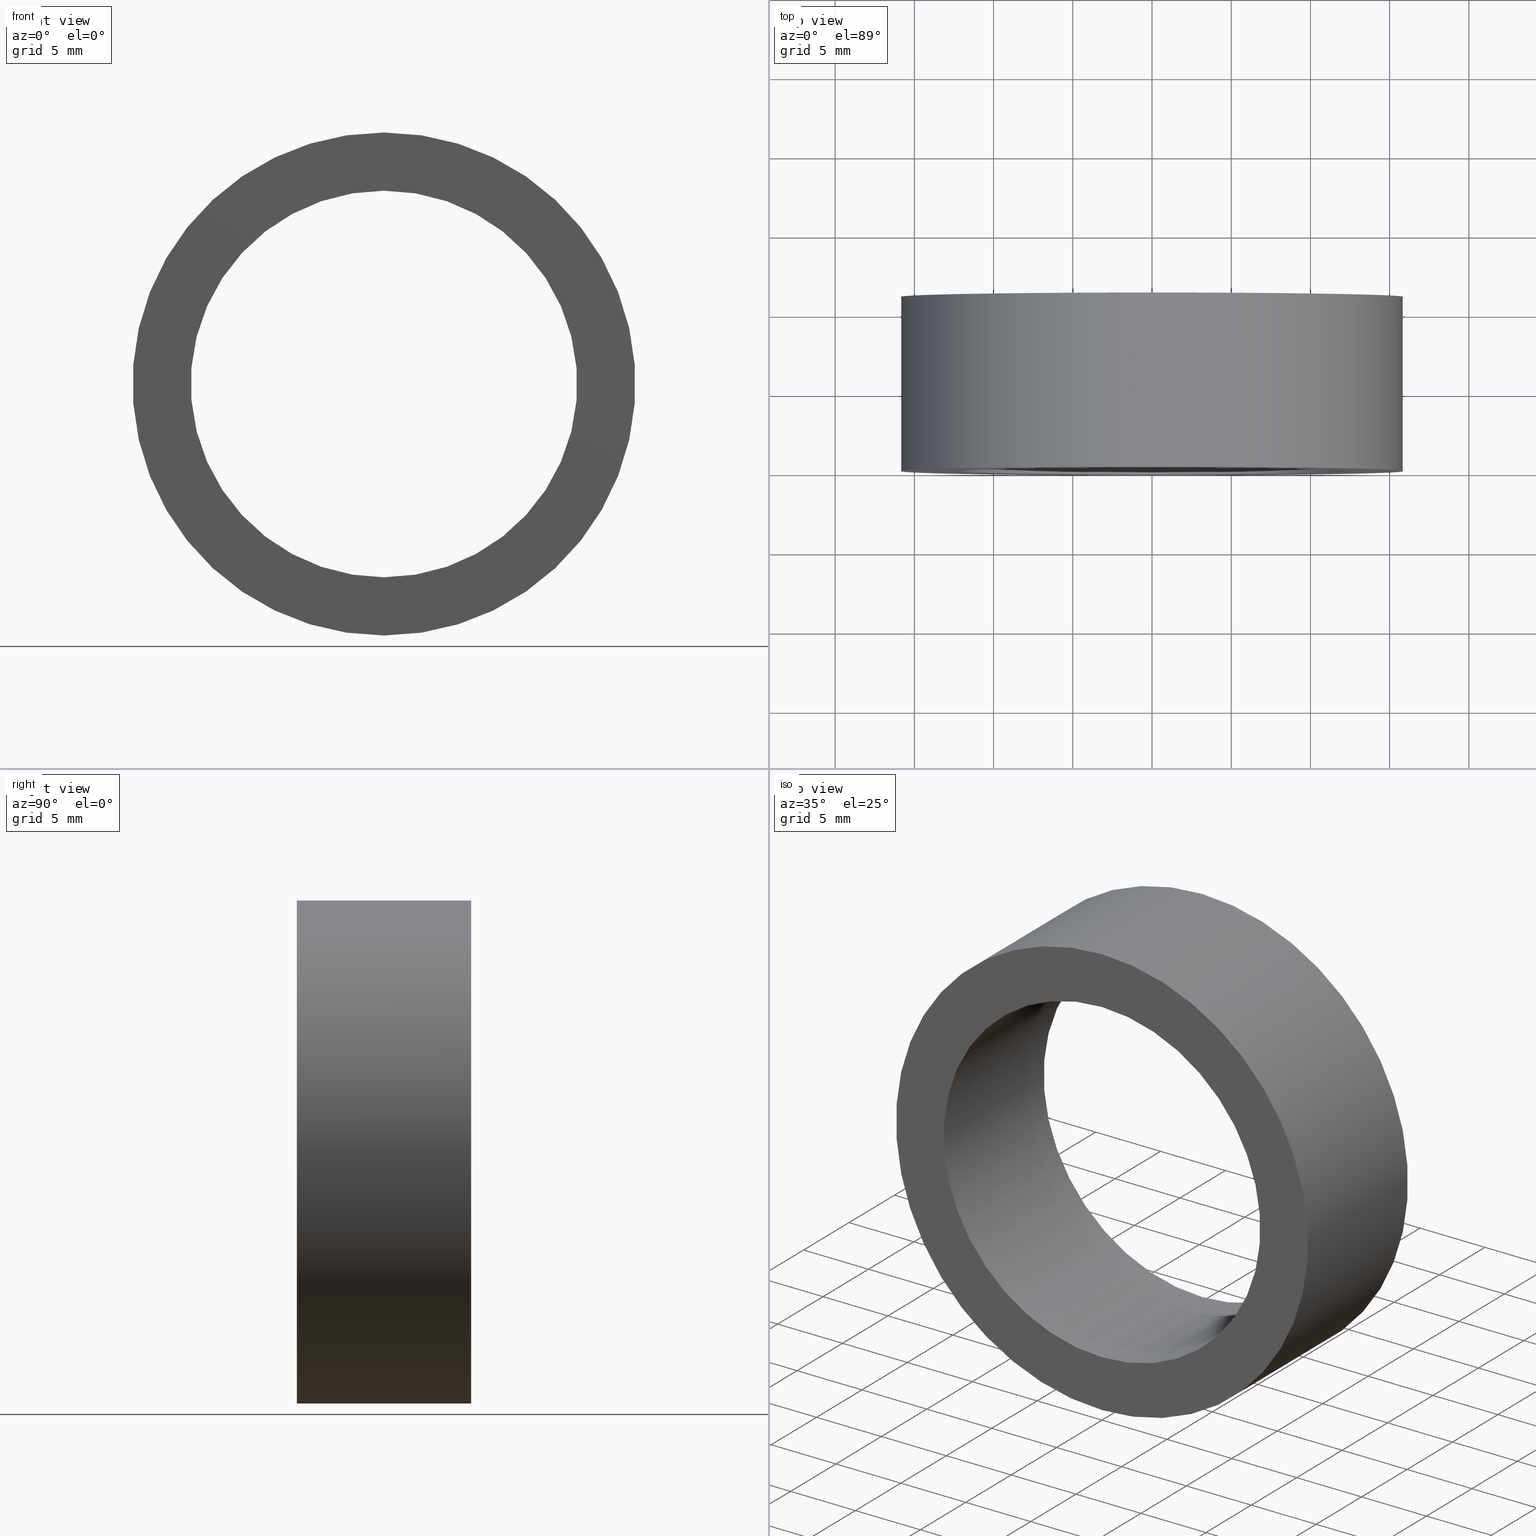
[diagram: canonical four-view strip — front | top / right | iso, engineering-drawing reading convention]
A machine part, canonical four-view strip (front | top / right | iso — engineering-drawing reading convention). The complete STEP part file that produces these views, byte-faithful:
ISO-10303-21;
HEADER;
FILE_DESCRIPTION (( 'STEP AP214' ),
    '1' );
FILE_NAME ('504079.STEP',
    '2019-09-05T09:06:12',
    ( 'user' ),
    ( '΢���й�' ),
    'SwSTEP 2.0',
    'SolidWorks 2016',
    '' );
FILE_SCHEMA (( 'AUTOMOTIVE_DESIGN' ));
ENDSEC;

DATA;
#1 = SURFACE_STYLE_USAGE ( .BOTH. , #99 ) ;
#2 = DIRECTION ( 'NONE',  ( 0.0000000000000000000, 1.000000000000000000, 0.0000000000000000000 ) ) ;
#3 = DIRECTION ( 'NONE',  ( 0.0000000000000000000, 1.000000000000000000, 0.0000000000000000000 ) ) ;
#4 = DIRECTION ( 'NONE',  ( 0.0000000000000000000, -0.0000000000000000000, 1.000000000000000000 ) ) ;
#5 = CARTESIAN_POINT ( 'NONE',  ( 0.0000000000000000000, 11.00000000000000000, 0.0000000000000000000 ) ) ;
#6 = DIRECTION ( 'NONE',  ( -0.0000000000000000000, -1.000000000000000000, -0.0000000000000000000 ) ) ;
#7 = SURFACE_STYLE_FILL_AREA ( #94 ) ;
#8 = ADVANCED_FACE ( 'NONE', ( #242, #216 ), #236, .F. ) ;
#9 = EDGE_LOOP ( 'NONE', ( #55, #64, #69, #92 ) ) ;
#10 = SURFACE_STYLE_FILL_AREA ( #163 ) ;
#11 = AXIS2_PLACEMENT_3D ( 'NONE', #144, #223, #125 ) ;
#12 = APPLICATION_PROTOCOL_DEFINITION ( 'draft international standard', 'automotive_design', 1998, #244 ) ;
#13 = CIRCLE ( 'NONE', #148, 15.87500000000000000 ) ;
#14 = PRESENTATION_STYLE_ASSIGNMENT (( #38 ) ) ;
#15 = CYLINDRICAL_SURFACE ( 'NONE', #185, 12.19999999999999900 ) ;
#16 = FILL_AREA_STYLE_COLOUR ( '', #209 ) ;
#17 = CARTESIAN_POINT ( 'NONE',  ( 0.0000000000000000000, 11.00000000000000000, 0.0000000000000000000 ) ) ;
#18 = CARTESIAN_POINT ( 'NONE',  ( 0.0000000000000000000, 0.0000000000000000000, 0.0000000000000000000 ) ) ;
#19 = CIRCLE ( 'NONE', #54, 15.87500000000000000 ) ;
#20 = DIRECTION ( 'NONE',  ( 0.0000000000000000000, 0.0000000000000000000, 1.000000000000000000 ) ) ;
#21 = UNCERTAINTY_MEASURE_WITH_UNIT (LENGTH_MEASURE( 1.000000000000000100E-005 ), #243, 'distance_accuracy_value', 'NONE');
#22 = CARTESIAN_POINT ( 'NONE',  ( 0.0000000000000000000, 11.00000000000000000, -15.87500000000000000 ) ) ;
#23 =( GEOMETRIC_REPRESENTATION_CONTEXT ( 3 ) GLOBAL_UNCERTAINTY_ASSIGNED_CONTEXT ( ( #21 ) ) GLOBAL_UNIT_ASSIGNED_CONTEXT ( ( #243, #165, #26 ) ) REPRESENTATION_CONTEXT ( 'NONE', 'WORKASPACE' ) );
#24 = LINE ( 'NONE', #86, #128 ) ;
#25 = MECHANICAL_DESIGN_GEOMETRIC_PRESENTATION_REPRESENTATION (  '', ( #50 ), #208 ) ;
#26 =( NAMED_UNIT ( * ) SI_UNIT ( $, .STERADIAN. ) SOLID_ANGLE_UNIT ( ) );
#27 = FILL_AREA_STYLE_COLOUR ( '', #122 ) ;
#28 = FACE_OUTER_BOUND ( 'NONE', #88, .T. ) ;
#29 =( LENGTH_UNIT ( ) NAMED_UNIT ( * ) SI_UNIT ( .MILLI., .METRE. ) );
#30 = EDGE_CURVE ( 'NONE', #74, #90, #68, .T. ) ;
#31 = ORIENTED_EDGE ( 'NONE', *, *, #135, .T. ) ;
#32 = CARTESIAN_POINT ( 'NONE',  ( 0.0000000000000000000, 11.00000000000000000, 0.0000000000000000000 ) ) ;
#33 = DIRECTION ( 'NONE',  ( 0.0000000000000000000, 0.0000000000000000000, -1.000000000000000000 ) ) ;
#34 =( NAMED_UNIT ( * ) SI_UNIT ( $, .STERADIAN. ) SOLID_ANGLE_UNIT ( ) );
#35 = DIRECTION ( 'NONE',  ( -0.0000000000000000000, -1.000000000000000000, -0.0000000000000000000 ) ) ;
#36 = CIRCLE ( 'NONE', #219, 12.19999999999999900 ) ;
#37 = EDGE_CURVE ( 'NONE', #226, #235, #19, .T. ) ;
#38 = SURFACE_STYLE_USAGE ( .BOTH. , #72 ) ;
#39 = DIRECTION ( 'NONE',  ( 0.0000000000000000000, -0.0000000000000000000, 1.000000000000000000 ) ) ;
#40 = CARTESIAN_POINT ( 'NONE',  ( 1.494069094959770900E-015, 11.00000000000000000, 12.19999999999999900 ) ) ;
#41 =( GEOMETRIC_REPRESENTATION_CONTEXT ( 3 ) GLOBAL_UNCERTAINTY_ASSIGNED_CONTEXT ( ( #196 ) ) GLOBAL_UNIT_ASSIGNED_CONTEXT ( ( #227, #77, #34 ) ) REPRESENTATION_CONTEXT ( 'NONE', 'WORKASPACE' ) );
#42 = EDGE_CURVE ( 'NONE', #95, #235, #121, .T. ) ;
#43 = VECTOR ( 'NONE', #103, 1000.000000000000000 ) ;
#44 = FILL_AREA_STYLE ('',( #16 ) ) ;
#45 = LINE ( 'NONE', #98, #140 ) ;
#46 = EDGE_CURVE ( 'NONE', #142, #95, #13, .T. ) ;
#47 = CIRCLE ( 'NONE', #147, 12.19999999999999900 ) ;
#48 = ORIENTED_EDGE ( 'NONE', *, *, #201, .T. ) ;
#49 = EDGE_LOOP ( 'NONE', ( #224, #191 ) ) ;
#50 = STYLED_ITEM ( 'NONE', ( #14 ), #187 ) ;
#51 = DIRECTION ( 'NONE',  ( 0.0000000000000000000, 0.0000000000000000000, 1.000000000000000000 ) ) ;
#52 = DIRECTION ( 'NONE',  ( 1.000000000000000000, 0.0000000000000000000, 0.0000000000000000000 ) ) ;
#53 = ORIENTED_EDGE ( 'NONE', *, *, #37, .T. ) ;
#54 = AXIS2_PLACEMENT_3D ( 'NONE', #18, #82, #198 ) ;
#55 = ORIENTED_EDGE ( 'NONE', *, *, #30, .T. ) ;
#56 = EDGE_LOOP ( 'NONE', ( #93, #213 ) ) ;
#57 = DIRECTION ( 'NONE',  ( -0.0000000000000000000, -1.000000000000000000, -0.0000000000000000000 ) ) ;
#58 = VECTOR ( 'NONE', #57, 1000.000000000000000 ) ;
#59 = CARTESIAN_POINT ( 'NONE',  ( 0.0000000000000000000, 0.0000000000000000000, 0.0000000000000000000 ) ) ;
#60 = UNCERTAINTY_MEASURE_WITH_UNIT (LENGTH_MEASURE( 1.000000000000000100E-005 ), #225, 'distance_accuracy_value', 'NONE');
#61 = FILL_AREA_STYLE_COLOUR ( '', #66 ) ;
#62 = SURFACE_STYLE_FILL_AREA ( #44 ) ;
#63 = AXIS2_PLACEMENT_3D ( 'NONE', #210, #2, #39 ) ;
#64 = ORIENTED_EDGE ( 'NONE', *, *, #83, .T. ) ;
#65 = PRODUCT ( '504079', '504079', '', ( #230 ) ) ;
#66 = COLOUR_RGB ( '',1.000000000000000000, 1.000000000000000000, 1.000000000000000000 ) ;
#67 = CIRCLE ( 'NONE', #214, 15.87500000000000000 ) ;
#68 = CIRCLE ( 'NONE', #11, 12.19999999999999900 ) ;
#69 = ORIENTED_EDGE ( 'NONE', *, *, #201, .F. ) ;
#70 = AXIS2_PLACEMENT_3D ( 'NONE', #127, #237, #194 ) ;
#71 = EDGE_CURVE ( 'NONE', #160, #73, #36, .T. ) ;
#72 = SURFACE_SIDE_STYLE ('',( #7 ) ) ;
#73 = VERTEX_POINT ( 'NONE', #164 ) ;
#74 = VERTEX_POINT ( 'NONE', #117 ) ;
#75 = EDGE_LOOP ( 'NONE', ( #138, #123, #53, #81 ) ) ;
#76 = AXIS2_PLACEMENT_3D ( 'NONE', #171, #101, #20 ) ;
#77 =( NAMED_UNIT ( * ) PLANE_ANGLE_UNIT ( ) SI_UNIT ( $, .RADIAN. ) );
#78 = COLOUR_RGB ( '',1.000000000000000000, 1.000000000000000000, 1.000000000000000000 ) ;
#79 = ORIENTED_EDGE ( 'NONE', *, *, #46, .T. ) ;
#80 = DIRECTION ( 'NONE',  ( -0.0000000000000000000, -1.000000000000000000, -0.0000000000000000000 ) ) ;
#81 = ORIENTED_EDGE ( 'NONE', *, *, #42, .F. ) ;
#82 = DIRECTION ( 'NONE',  ( 0.0000000000000000000, 1.000000000000000000, 0.0000000000000000000 ) ) ;
#83 = EDGE_CURVE ( 'NONE', #90, #160, #45, .T. ) ;
#84 =( NAMED_UNIT ( * ) PLANE_ANGLE_UNIT ( ) SI_UNIT ( $, .RADIAN. ) );
#85 = EDGE_LOOP ( 'NONE', ( #207, #106, #87, #31 ) ) ;
#86 = CARTESIAN_POINT ( 'NONE',  ( 0.0000000000000000000, 11.00000000000000000, -12.19999999999999900 ) ) ;
#87 = ORIENTED_EDGE ( 'NONE', *, *, #42, .T. ) ;
#88 = EDGE_LOOP ( 'NONE', ( #212, #79 ) ) ;
#89 = CARTESIAN_POINT ( 'NONE',  ( 1.944126793646423200E-015, 0.0000000000000000000, 15.87500000000000000 ) ) ;
#90 = VERTEX_POINT ( 'NONE', #40 ) ;
#91 = DIRECTION ( 'NONE',  ( 0.0000000000000000000, 0.0000000000000000000, 1.000000000000000000 ) ) ;
#92 = ORIENTED_EDGE ( 'NONE', *, *, #131, .F. ) ;
#93 = ORIENTED_EDGE ( 'NONE', *, *, #30, .F. ) ;
#94 = FILL_AREA_STYLE ('',( #151 ) ) ;
#95 = VERTEX_POINT ( 'NONE', #22 ) ;
#96 = FACE_OUTER_BOUND ( 'NONE', #85, .T. ) ;
#97 = PRODUCT_DEFINITION_SHAPE ( 'NONE', 'NONE',  #181 ) ;
#98 = CARTESIAN_POINT ( 'NONE',  ( 1.494069094959770900E-015, 11.00000000000000000, 12.19999999999999900 ) ) ;
#99 = SURFACE_SIDE_STYLE ('',( #10 ) ) ;
#100 = ADVANCED_FACE ( 'NONE', ( #118 ), #161, .F. ) ;
#101 = DIRECTION ( 'NONE',  ( 0.0000000000000000000, 1.000000000000000000, 0.0000000000000000000 ) ) ;
#102 = CARTESIAN_POINT ( 'NONE',  ( 0.0000000000000000000, 0.0000000000000000000, 0.0000000000000000000 ) ) ;
#103 = DIRECTION ( 'NONE',  ( -0.0000000000000000000, -1.000000000000000000, -0.0000000000000000000 ) ) ;
#104 = CARTESIAN_POINT ( 'NONE',  ( 1.494069094959770900E-015, 0.0000000000000000000, 12.19999999999999900 ) ) ;
#105 = PRODUCT_DEFINITION_FORMATION_WITH_SPECIFIED_SOURCE ( '�κ�', '', #65, .NOT_KNOWN. ) ;
#106 = ORIENTED_EDGE ( 'NONE', *, *, #139, .F. ) ;
#107 = CIRCLE ( 'NONE', #70, 12.19999999999999900 ) ;
#108 = CARTESIAN_POINT ( 'NONE',  ( 0.0000000000000000000, 0.0000000000000000000, 0.0000000000000000000 ) ) ;
#109 = EDGE_CURVE ( 'NONE', #142, #226, #221, .T. ) ;
#110 = ORIENTED_EDGE ( 'NONE', *, *, #131, .T. ) ;
#111 = PRESENTATION_LAYER_ASSIGNMENT (  '', '', ( #203 ) ) ;
#112 = PRESENTATION_STYLE_ASSIGNMENT (( #1 ) ) ;
#113 = MECHANICAL_DESIGN_GEOMETRIC_PRESENTATION_REPRESENTATION (  '', ( #173 ), #23 ) ;
#114 = CARTESIAN_POINT ( 'NONE',  ( 0.0000000000000000000, 0.0000000000000000000, 0.0000000000000000000 ) ) ;
#115 = ADVANCED_FACE ( 'NONE', ( #28, #137 ), #234, .T. ) ;
#116 = DIRECTION ( 'NONE',  ( 0.0000000000000000000, 1.000000000000000000, 0.0000000000000000000 ) ) ;
#117 = CARTESIAN_POINT ( 'NONE',  ( 0.0000000000000000000, 11.00000000000000000, -12.19999999999999900 ) ) ;
#118 = FACE_OUTER_BOUND ( 'NONE', #150, .T. ) ;
#119 = SHAPE_DEFINITION_REPRESENTATION ( #97, #170 ) ;
#120 = SURFACE_STYLE_USAGE ( .BOTH. , #180 ) ;
#121 = LINE ( 'NONE', #205, #58 ) ;
#122 = COLOUR_RGB ( '',1.000000000000000000, 1.000000000000000000, 1.000000000000000000 ) ;
#123 = ORIENTED_EDGE ( 'NONE', *, *, #109, .T. ) ;
#124 = CARTESIAN_POINT ( 'NONE',  ( 0.0000000000000000000, 0.0000000000000000000, -15.87500000000000000 ) ) ;
#125 = DIRECTION ( 'NONE',  ( 0.0000000000000000000, 0.0000000000000000000, 1.000000000000000000 ) ) ;
#126 = DIRECTION ( 'NONE',  ( 0.0000000000000000000, 1.000000000000000000, 0.0000000000000000000 ) ) ;
#127 = CARTESIAN_POINT ( 'NONE',  ( 0.0000000000000000000, 0.0000000000000000000, 0.0000000000000000000 ) ) ;
#128 = VECTOR ( 'NONE', #80, 1000.000000000000000 ) ;
#129 =( NAMED_UNIT ( * ) SI_UNIT ( $, .STERADIAN. ) SOLID_ANGLE_UNIT ( ) );
#130 = EDGE_LOOP ( 'NONE', ( #48, #134 ) ) ;
#131 = EDGE_CURVE ( 'NONE', #74, #73, #24, .T. ) ;
#132 = UNCERTAINTY_MEASURE_WITH_UNIT (LENGTH_MEASURE( 1.000000000000000100E-005 ), #217, 'distance_accuracy_value', 'NONE');
#133 = PRESENTATION_STYLE_ASSIGNMENT (( #184 ) ) ;
#134 = ORIENTED_EDGE ( 'NONE', *, *, #71, .T. ) ;
#135 = EDGE_CURVE ( 'NONE', #235, #226, #67, .T. ) ;
#136 = DIRECTION ( 'NONE',  ( -0.0000000000000000000, -1.000000000000000000, -0.0000000000000000000 ) ) ;
#137 = FACE_BOUND ( 'NONE', #56, .T. ) ;
#138 = ORIENTED_EDGE ( 'NONE', *, *, #46, .F. ) ;
#139 = EDGE_CURVE ( 'NONE', #95, #142, #168, .T. ) ;
#140 = VECTOR ( 'NONE', #146, 1000.000000000000000 ) ;
#141 = SURFACE_SIDE_STYLE ('',( #159 ) ) ;
#142 = VERTEX_POINT ( 'NONE', #232 ) ;
#143 = ADVANCED_FACE ( 'NONE', ( #174 ), #238, .T. ) ;
#144 = CARTESIAN_POINT ( 'NONE',  ( 0.0000000000000000000, 11.00000000000000000, 0.0000000000000000000 ) ) ;
#145 = DIRECTION ( 'NONE',  ( 0.0000000000000000000, 1.000000000000000000, 0.0000000000000000000 ) ) ;
#146 = DIRECTION ( 'NONE',  ( -0.0000000000000000000, -1.000000000000000000, -0.0000000000000000000 ) ) ;
#147 = AXIS2_PLACEMENT_3D ( 'NONE', #197, #126, #233 ) ;
#148 = AXIS2_PLACEMENT_3D ( 'NONE', #5, #204, #91 ) ;
#149 = AXIS2_PLACEMENT_3D ( 'NONE', #102, #190, #52 ) ;
#150 = EDGE_LOOP ( 'NONE', ( #195, #172, #110, #188 ) ) ;
#151 = FILL_AREA_STYLE_COLOUR ( '', #78 ) ;
#152 = DIRECTION ( 'NONE',  ( -0.0000000000000000000, -1.000000000000000000, -0.0000000000000000000 ) ) ;
#153 = PRESENTATION_LAYER_ASSIGNMENT (  '', '', ( #162 ) ) ;
#154 = EDGE_CURVE ( 'NONE', #90, #74, #47, .T. ) ;
#155 = APPLICATION_CONTEXT ( 'automotive_design' ) ;
#156 = PRESENTATION_STYLE_ASSIGNMENT (( #120 ) ) ;
#157 = DIRECTION ( 'NONE',  ( 0.0000000000000000000, 0.0000000000000000000, 1.000000000000000000 ) ) ;
#158 =( GEOMETRIC_REPRESENTATION_CONTEXT ( 3 ) GLOBAL_UNCERTAINTY_ASSIGNED_CONTEXT ( ( #60 ) ) GLOBAL_UNIT_ASSIGNED_CONTEXT ( ( #225, #84, #176 ) ) REPRESENTATION_CONTEXT ( 'NONE', 'WORKASPACE' ) );
#159 = SURFACE_STYLE_FILL_AREA ( #199 ) ;
#160 = VERTEX_POINT ( 'NONE', #104 ) ;
#161 = CYLINDRICAL_SURFACE ( 'NONE', #211, 12.19999999999999900 ) ;
#162 = STYLED_ITEM ( 'NONE', ( #156 ), #167 ) ;
#163 = FILL_AREA_STYLE ('',( #27 ) ) ;
#164 = CARTESIAN_POINT ( 'NONE',  ( 0.0000000000000000000, 0.0000000000000000000, -12.19999999999999900 ) ) ;
#165 =( NAMED_UNIT ( * ) PLANE_ANGLE_UNIT ( ) SI_UNIT ( $, .RADIAN. ) );
#166 = MECHANICAL_DESIGN_GEOMETRIC_PRESENTATION_REPRESENTATION (  '', ( #162 ), #182 ) ;
#167 = ADVANCED_FACE ( 'NONE', ( #200 ), #15, .F. ) ;
#168 = CIRCLE ( 'NONE', #76, 15.87500000000000000 ) ;
#169 = AXIS2_PLACEMENT_3D ( 'NONE', #193, #136, #33 ) ;
#170 = ADVANCED_BREP_SHAPE_REPRESENTATION ( '504079', ( #187, #149 ), #41 ) ;
#171 = CARTESIAN_POINT ( 'NONE',  ( 0.0000000000000000000, 11.00000000000000000, 0.0000000000000000000 ) ) ;
#172 = ORIENTED_EDGE ( 'NONE', *, *, #154, .T. ) ;
#173 = STYLED_ITEM ( 'NONE', ( #112 ), #170 ) ;
#174 = FACE_OUTER_BOUND ( 'NONE', #75, .T. ) ;
#175 = CYLINDRICAL_SURFACE ( 'NONE', #177, 15.87500000000000000 ) ;
#176 =( NAMED_UNIT ( * ) SI_UNIT ( $, .STERADIAN. ) SOLID_ANGLE_UNIT ( ) );
#177 = AXIS2_PLACEMENT_3D ( 'NONE', #17, #35, #179 ) ;
#178 = UNCERTAINTY_MEASURE_WITH_UNIT (LENGTH_MEASURE( 1.000000000000000100E-005 ), #29, 'distance_accuracy_value', 'NONE');
#179 = DIRECTION ( 'NONE',  ( 0.0000000000000000000, 0.0000000000000000000, -1.000000000000000000 ) ) ;
#180 = SURFACE_SIDE_STYLE ('',( #62 ) ) ;
#181 = PRODUCT_DEFINITION ( 'δ֪', '', #105, #186 ) ;
#182 =( GEOMETRIC_REPRESENTATION_CONTEXT ( 3 ) GLOBAL_UNCERTAINTY_ASSIGNED_CONTEXT ( ( #132 ) ) GLOBAL_UNIT_ASSIGNED_CONTEXT ( ( #217, #183, #129 ) ) REPRESENTATION_CONTEXT ( 'NONE', 'WORKASPACE' ) );
#183 =( NAMED_UNIT ( * ) PLANE_ANGLE_UNIT ( ) SI_UNIT ( $, .RADIAN. ) );
#184 = SURFACE_STYLE_USAGE ( .BOTH. , #141 ) ;
#185 = AXIS2_PLACEMENT_3D ( 'NONE', #239, #6, #222 ) ;
#186 = PRODUCT_DEFINITION_CONTEXT ( 'detailed design', #155, 'design' ) ;
#187 = MANIFOLD_SOLID_BREP ( '͹̨-����1', #206 ) ;
#188 = ORIENTED_EDGE ( 'NONE', *, *, #71, .F. ) ;
#189 = DIRECTION ( 'NONE',  ( 0.0000000000000000000, 0.0000000000000000000, -1.000000000000000000 ) ) ;
#190 = DIRECTION ( 'NONE',  ( 0.0000000000000000000, 0.0000000000000000000, 1.000000000000000000 ) ) ;
#191 = ORIENTED_EDGE ( 'NONE', *, *, #37, .F. ) ;
#192 = AXIS2_PLACEMENT_3D ( 'NONE', #59, #116, #4 ) ;
#193 = CARTESIAN_POINT ( 'NONE',  ( 0.0000000000000000000, 11.00000000000000000, 0.0000000000000000000 ) ) ;
#194 = DIRECTION ( 'NONE',  ( 0.0000000000000000000, 0.0000000000000000000, 1.000000000000000000 ) ) ;
#195 = ORIENTED_EDGE ( 'NONE', *, *, #83, .F. ) ;
#196 = UNCERTAINTY_MEASURE_WITH_UNIT (LENGTH_MEASURE( 1.000000000000000100E-005 ), #227, 'distance_accuracy_value', 'NONE');
#197 = CARTESIAN_POINT ( 'NONE',  ( 0.0000000000000000000, 11.00000000000000000, 0.0000000000000000000 ) ) ;
#198 = DIRECTION ( 'NONE',  ( 0.0000000000000000000, 0.0000000000000000000, 1.000000000000000000 ) ) ;
#199 = FILL_AREA_STYLE ('',( #61 ) ) ;
#200 = FACE_OUTER_BOUND ( 'NONE', #9, .T. ) ;
#201 = EDGE_CURVE ( 'NONE', #73, #160, #107, .T. ) ;
#202 = PRODUCT_RELATED_PRODUCT_CATEGORY ( 'part', '', ( #65 ) ) ;
#203 = STYLED_ITEM ( 'NONE', ( #133 ), #100 ) ;
#204 = DIRECTION ( 'NONE',  ( 0.0000000000000000000, 1.000000000000000000, 0.0000000000000000000 ) ) ;
#205 = CARTESIAN_POINT ( 'NONE',  ( 0.0000000000000000000, 11.00000000000000000, -15.87500000000000000 ) ) ;
#206 = CLOSED_SHELL ( 'NONE', ( #167, #143, #115, #8, #228, #100 ) ) ;
#207 = ORIENTED_EDGE ( 'NONE', *, *, #109, .F. ) ;
#208 =( GEOMETRIC_REPRESENTATION_CONTEXT ( 3 ) GLOBAL_UNCERTAINTY_ASSIGNED_CONTEXT ( ( #178 ) ) GLOBAL_UNIT_ASSIGNED_CONTEXT ( ( #29, #218, #241 ) ) REPRESENTATION_CONTEXT ( 'NONE', 'WORKASPACE' ) );
#209 = COLOUR_RGB ( '',1.000000000000000000, 1.000000000000000000, 1.000000000000000000 ) ;
#210 = CARTESIAN_POINT ( 'NONE',  ( 0.0000000000000000000, 11.00000000000000000, 0.0000000000000000000 ) ) ;
#211 = AXIS2_PLACEMENT_3D ( 'NONE', #32, #152, #189 ) ;
#212 = ORIENTED_EDGE ( 'NONE', *, *, #139, .T. ) ;
#213 = ORIENTED_EDGE ( 'NONE', *, *, #154, .F. ) ;
#214 = AXIS2_PLACEMENT_3D ( 'NONE', #114, #145, #157 ) ;
#215 = PRESENTATION_LAYER_ASSIGNMENT (  '', '', ( #173 ) ) ;
#216 = FACE_BOUND ( 'NONE', #130, .T. ) ;
#217 =( LENGTH_UNIT ( ) NAMED_UNIT ( * ) SI_UNIT ( .MILLI., .METRE. ) );
#218 =( NAMED_UNIT ( * ) PLANE_ANGLE_UNIT ( ) SI_UNIT ( $, .RADIAN. ) );
#219 = AXIS2_PLACEMENT_3D ( 'NONE', #108, #3, #51 ) ;
#220 = APPLICATION_PROTOCOL_DEFINITION ( 'draft international standard', 'automotive_design', 1998, #155 ) ;
#221 = LINE ( 'NONE', #231, #43 ) ;
#222 = DIRECTION ( 'NONE',  ( 0.0000000000000000000, 0.0000000000000000000, -1.000000000000000000 ) ) ;
#223 = DIRECTION ( 'NONE',  ( 0.0000000000000000000, 1.000000000000000000, 0.0000000000000000000 ) ) ;
#224 = ORIENTED_EDGE ( 'NONE', *, *, #135, .F. ) ;
#225 =( LENGTH_UNIT ( ) NAMED_UNIT ( * ) SI_UNIT ( .MILLI., .METRE. ) );
#226 = VERTEX_POINT ( 'NONE', #89 ) ;
#227 =( LENGTH_UNIT ( ) NAMED_UNIT ( * ) SI_UNIT ( .MILLI., .METRE. ) );
#228 = ADVANCED_FACE ( 'NONE', ( #96 ), #175, .T. ) ;
#229 = MECHANICAL_DESIGN_GEOMETRIC_PRESENTATION_REPRESENTATION (  '', ( #203 ), #158 ) ;
#230 = PRODUCT_CONTEXT ( 'NONE', #244, 'mechanical' ) ;
#231 = CARTESIAN_POINT ( 'NONE',  ( 1.944126793646423200E-015, 11.00000000000000000, 15.87500000000000000 ) ) ;
#232 = CARTESIAN_POINT ( 'NONE',  ( 1.944126793646423200E-015, 11.00000000000000000, 15.87500000000000000 ) ) ;
#233 = DIRECTION ( 'NONE',  ( 0.0000000000000000000, 0.0000000000000000000, 1.000000000000000000 ) ) ;
#234 = PLANE ( 'NONE',  #63 ) ;
#235 = VERTEX_POINT ( 'NONE', #124 ) ;
#236 = PLANE ( 'NONE',  #192 ) ;
#237 = DIRECTION ( 'NONE',  ( 0.0000000000000000000, 1.000000000000000000, 0.0000000000000000000 ) ) ;
#238 = CYLINDRICAL_SURFACE ( 'NONE', #169, 15.87500000000000000 ) ;
#239 = CARTESIAN_POINT ( 'NONE',  ( 0.0000000000000000000, 11.00000000000000000, 0.0000000000000000000 ) ) ;
#240 = PRESENTATION_LAYER_ASSIGNMENT (  '', '', ( #50 ) ) ;
#241 =( NAMED_UNIT ( * ) SI_UNIT ( $, .STERADIAN. ) SOLID_ANGLE_UNIT ( ) );
#242 = FACE_OUTER_BOUND ( 'NONE', #49, .T. ) ;
#243 =( LENGTH_UNIT ( ) NAMED_UNIT ( * ) SI_UNIT ( .MILLI., .METRE. ) );
#244 = APPLICATION_CONTEXT ( 'automotive_design' ) ;
ENDSEC;
END-ISO-10303-21;
